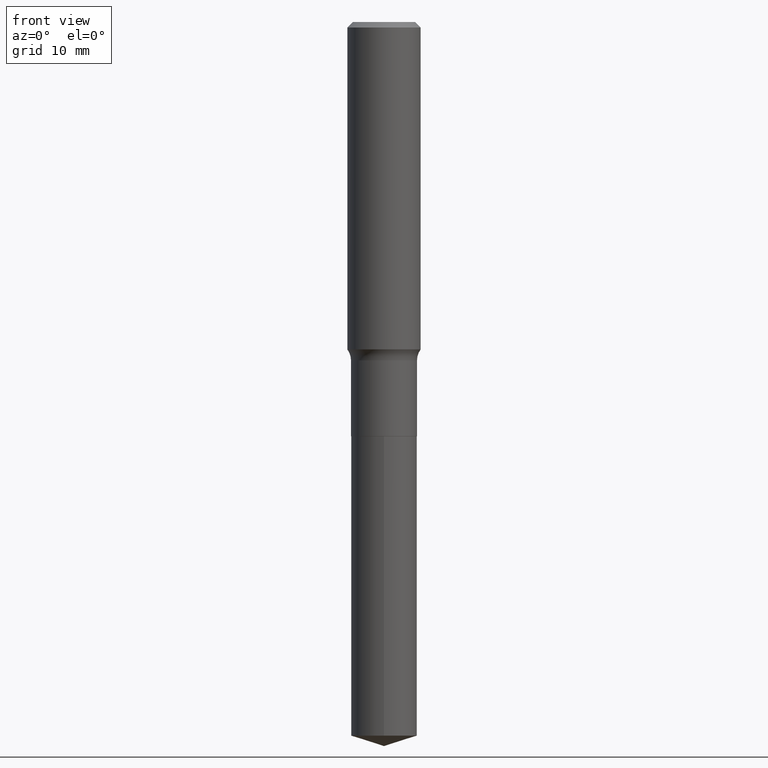
[diagram: clean part render]
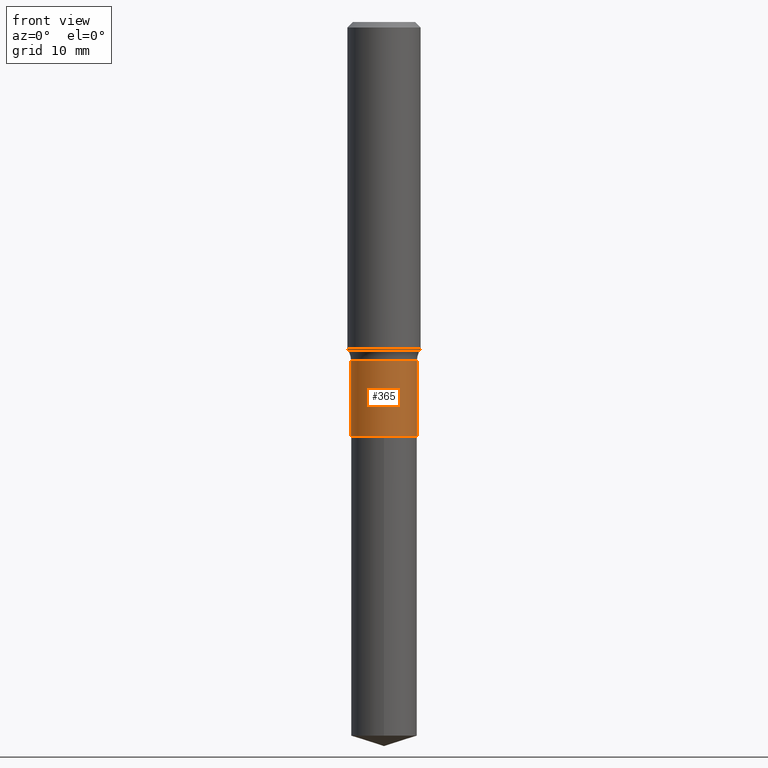
[diagram: same view with one face highlighted and labeled with its STEP entity id]
A machine part, front view. The second image highlights one B-rep face of the part: STEP entity #365.
In plain terms, the highlighted cylindrical surface (edge-blend (fillet) strip) has radius 3.6004 mm, axis along (-0, 0, 1).
Its self-contained STEP definition (entity closure, byte-faithful):
#6 = VERTEX_POINT ( 'NONE', #63 ) ;
#17 = ORIENTED_EDGE ( 'NONE', *, *, #374, .F. ) ;
#44 = DIRECTION ( 'NONE',  ( -2.445468806185136597E-29, 3.491481338843145583E-15, 1.000000000000000000 ) ) ;
#53 = FACE_OUTER_BOUND ( 'NONE', #298, .T. ) ;
#54 = CYLINDRICAL_SURFACE ( 'NONE', #397, 0.1417499999999999594 ) ;
#63 = CARTESIAN_POINT ( 'NONE',  ( 0.1417499999999999594, -6.064703085570540056E-15, -1.453500000000000014 ) ) ;
#92 = CIRCLE ( 'NONE', #307, 0.1417499999999999594 ) ;
#95 = VERTEX_POINT ( 'NONE', #256 ) ;
#121 = ORIENTED_EDGE ( 'NONE', *, *, #174, .F. ) ;
#132 = LINE ( 'NONE', #275, #429 ) ;
#137 = DIRECTION ( 'NONE',  ( -2.445468806185136597E-29, 3.491481338843145583E-15, 1.000000000000000000 ) ) ;
#155 = DIRECTION ( 'NONE',  ( -2.445468806185136877E-29, 3.491481338843145188E-15, 1.000000000000000000 ) ) ;
#165 = DIRECTION ( 'NONE',  ( 1.000000000000000000, -6.982962677686268288E-15, 0.000000000000000000 ) ) ;
#169 = DIRECTION ( 'NONE',  ( 1.000000000000000000, -6.982962677686266711E-15, 4.876176775795935793E-29 ) ) ;
#174 = EDGE_CURVE ( 'NONE', #414, #95, #413, .T. ) ;
#183 = CIRCLE ( 'NONE', #219, 0.1417499999999999594 ) ;
#186 = EDGE_CURVE ( 'NONE', #414, #376, #183, .T. ) ;
#219 = AXIS2_PLACEMENT_3D ( 'NONE', #302, #44, #165 ) ;
#239 = DIRECTION ( 'NONE',  ( 1.000000000000000000, -6.982962677686268288E-15, 0.000000000000000000 ) ) ;
#256 = CARTESIAN_POINT ( 'NONE',  ( -0.1417499999999999594, -4.635912385965292401E-15, -1.453500000000000014 ) ) ;
#275 = CARTESIAN_POINT ( 'NONE',  ( 0.1417499999999999594, -9.898349595620280222E-16, 6.911980579690737389E-30 ) ) ;
#298 = EDGE_LOOP ( 'NONE', ( #121, #464, #404, #17 ) ) ;
#302 = CARTESIAN_POINT ( 'NONE',  ( 4.350489006203358077E-29, -6.211345301801956611E-15, -1.779000000000000137 ) ) ;
#307 = AXIS2_PLACEMENT_3D ( 'NONE', #357, #137, #239 ) ;
#321 = DIRECTION ( 'NONE',  ( -2.445468806185136597E-29, 3.491481338843145583E-15, 1.000000000000000000 ) ) ;
#341 = VECTOR ( 'NONE', #155, 39.37007874015748143 ) ;
#351 = CARTESIAN_POINT ( 'NONE',  ( -0.1417499999999999594, 1.007194327939941725E-15, -6.972590490436327745E-30 ) ) ;
#357 = CARTESIAN_POINT ( 'NONE',  ( 3.554488909790095658E-29, -5.074868126008511245E-15, -1.453500000000000014 ) ) ;
#365 = ADVANCED_FACE ( 'NONE', ( #53 ), #54, .T. ) ;
#374 = EDGE_CURVE ( 'NONE', #95, #6, #92, .T. ) ;
#376 = VERTEX_POINT ( 'NONE', #462 ) ;
#387 = CARTESIAN_POINT ( 'NONE',  ( -0.1417499999999999594, -4.635912385965292401E-15, -1.779000000000000137 ) ) ;
#397 = AXIS2_PLACEMENT_3D ( 'NONE', #465, #321, #169 ) ;
#399 = EDGE_CURVE ( 'NONE', #376, #6, #132, .T. ) ;
#404 = ORIENTED_EDGE ( 'NONE', *, *, #399, .T. ) ;
#413 = LINE ( 'NONE', #351, #341 ) ;
#414 = VERTEX_POINT ( 'NONE', #387 ) ;
#429 = VECTOR ( 'NONE', #467, 39.37007874015748143 ) ;
#462 = CARTESIAN_POINT ( 'NONE',  ( 0.1417499999999999594, -7.201180261363985422E-15, -1.779000000000000137 ) ) ;
#464 = ORIENTED_EDGE ( 'NONE', *, *, #186, .T. ) ;
#465 = CARTESIAN_POINT ( 'NONE',  ( 0.000000000000000000, 0.000000000000000000, 0.000000000000000000 ) ) ;
#467 = DIRECTION ( 'NONE',  ( -2.445468806185136877E-29, 3.491481338843145188E-15, 1.000000000000000000 ) ) ;